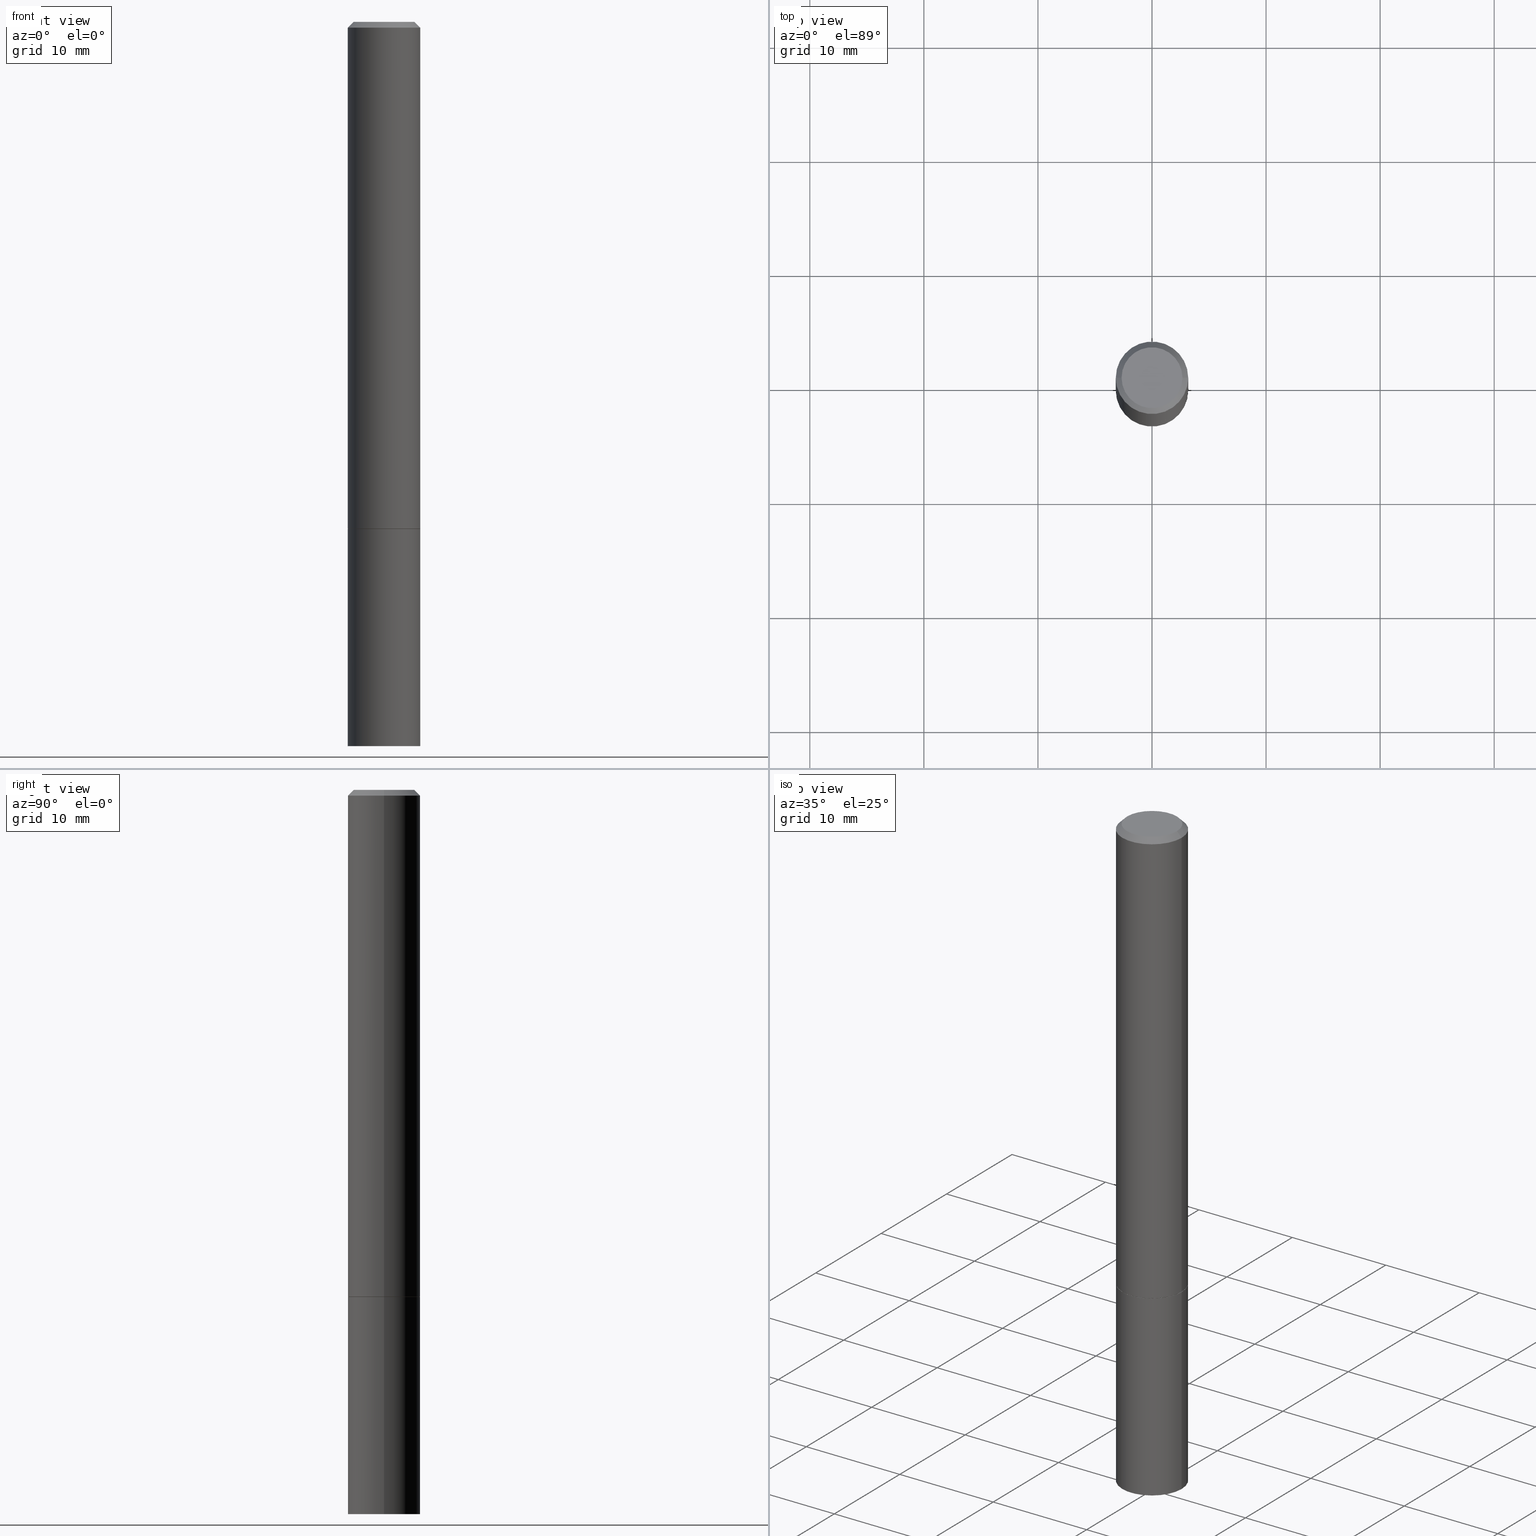
[diagram: canonical four-view strip — front | top / right | iso, engineering-drawing reading convention]
A machine part, canonical four-view strip (front | top / right | iso — engineering-drawing reading convention). The complete STEP part file that produces these views, byte-faithful:
ISO-10303-21;
HEADER;
FILE_DESCRIPTION (( 'STEP AP203' ),
    '1' );
FILE_NAME ('37424.STEP',
    '2024-02-27T21:38:22',
    ( '' ),
    ( '' ),
    'SwSTEP 2.0',
    'SolidWorks 2023',
    '' );
FILE_SCHEMA (( 'CONFIG_CONTROL_DESIGN' ));
ENDSEC;

DATA;
#1 = AXIS2_PLACEMENT_3D ( 'NONE', #358, #110, #298 ) ;
#2 = EDGE_CURVE ( 'NONE', #80, #205, #357, .T. ) ;
#3 = APPLICATION_CONTEXT ( 'configuration controlled 3d designs of mechanical parts and assemblies' ) ;
#4 = CC_DESIGN_PERSON_AND_ORGANIZATION_ASSIGNMENT ( #40, #94, ( #271 ) ) ;
#5 = CYLINDRICAL_SURFACE ( 'NONE', #26, 0.1249999999999999029 ) ;
#6 = LOCAL_TIME ( 16, 38, 22.00000000000000000, #243 ) ;
#7 = AXIS2_PLACEMENT_3D ( 'NONE', #156, #119, #241 ) ;
#8 = CC_DESIGN_APPROVAL ( #162, ( #271 ) ) ;
#9 = DIRECTION ( 'NONE',  ( -1.000000000000000000, 6.982962677686266711E-15, 0.000000000000000000 ) ) ;
#10 = EDGE_LOOP ( 'NONE', ( #112, #27, #103, #168 ) ) ;
#11 = CARTESIAN_POINT ( 'NONE',  ( 0.000000000000000000, 0.000000000000000000, 0.000000000000000000 ) ) ;
#12 = EDGE_CURVE ( 'NONE', #80, #178, #280, .T. ) ;
#13 = CARTESIAN_POINT ( 'NONE',  ( 4.279570410823988484E-29, -6.110092342975504671E-15, -1.750000000000000000 ) ) ;
#14 = FACE_OUTER_BOUND ( 'NONE', #113, .T. ) ;
#15 = ORIENTED_EDGE ( 'NONE', *, *, #143, .T. ) ;
#16 = CC_DESIGN_PERSON_AND_ORGANIZATION_ASSIGNMENT ( #45, #135, ( #223 ) ) ;
#17 = CARTESIAN_POINT ( 'NONE',  ( 0.000000000000000000, 0.000000000000000000, 0.000000000000000000 ) ) ;
#18 = PERSON_AND_ORGANIZATION ( #284, #257 ) ;
#19 = DIRECTION ( 'NONE',  ( -2.445468806185136597E-29, 3.491481338843145583E-15, 1.000000000000000000 ) ) ;
#20 = APPROVAL_PERSON_ORGANIZATION ( #210, #74, #124 ) ;
#21 = PLANE ( 'NONE',  #33 ) ;
#22 = VERTEX_POINT ( 'NONE', #117 ) ;
#23 = DIRECTION ( 'NONE',  ( 0.7071067811866199593, -2.468850131083015945E-15, 0.7071067811864750752 ) ) ;
#24 = ADVANCED_BREP_SHAPE_REPRESENTATION ( '37424', ( #128, #263, #276 ), #35 ) ;
#25 = ORIENTED_EDGE ( 'NONE', *, *, #2, .F. ) ;
#26 = AXIS2_PLACEMENT_3D ( 'NONE', #192, #254, #126 ) ;
#27 = ORIENTED_EDGE ( 'NONE', *, *, #318, .T. ) ;
#28 = EDGE_CURVE ( 'NONE', #131, #22, #92, .T. ) ;
#29 = CIRCLE ( 'NONE', #100, 0.1239999999999999991 ) ;
#30 = EDGE_CURVE ( 'NONE', #213, #282, #301, .T. ) ;
#31 = COORDINATED_UNIVERSAL_TIME_OFFSET ( 5, 0, .BEHIND. ) ;
#32 = ADVANCED_FACE ( 'NONE', ( #97 ), #325, .T. ) ;
#33 = AXIS2_PLACEMENT_3D ( 'NONE', #310, #334, #115 ) ;
#34 = DIRECTION ( 'NONE',  ( -2.445468806185136597E-29, 3.491481338843145583E-15, 1.000000000000000000 ) ) ;
#35 =( GEOMETRIC_REPRESENTATION_CONTEXT ( 3 ) GLOBAL_UNCERTAINTY_ASSIGNED_CONTEXT ( ( #242 ) ) GLOBAL_UNIT_ASSIGNED_CONTEXT ( ( #49, #269, #296 ) ) REPRESENTATION_CONTEXT ( 'NONE', 'WORKASPACE' ) );
#36 = ORIENTED_EDGE ( 'NONE', *, *, #330, .F. ) ;
#37 = LINE ( 'NONE', #226, #78 ) ;
#38 = DIMENSIONAL_EXPONENTS ( 1.000000000000000000, 0.000000000000000000, 0.000000000000000000, 0.000000000000000000, 0.000000000000000000, 0.000000000000000000, 0.000000000000000000 ) ;
#39 = FACE_OUTER_BOUND ( 'NONE', #231, .T. ) ;
#40 = PERSON_AND_ORGANIZATION ( #284, #257 ) ;
#41 = EDGE_LOOP ( 'NONE', ( #62, #15, #246, #354 ) ) ;
#42 = VERTEX_POINT ( 'NONE', #279 ) ;
#43 = AXIS2_PLACEMENT_3D ( 'NONE', #86, #275, #9 ) ;
#44 = AXIS2_PLACEMENT_3D ( 'NONE', #132, #195, #234 ) ;
#45 = PERSON_AND_ORGANIZATION ( #284, #257 ) ;
#46 = CARTESIAN_POINT ( 'NONE',  ( -0.1249999999999997918, 8.030407079339188573E-16, -0.02000000000000003511 ) ) ;
#47 = CARTESIAN_POINT ( 'NONE',  ( 4.279570410823989044E-29, -6.110092342975505460E-15, -1.750000000000000222 ) ) ;
#48 = EDGE_LOOP ( 'NONE', ( #350, #300 ) ) ;
#49 =( CONVERSION_BASED_UNIT ( 'INCH', #311 ) LENGTH_UNIT ( ) NAMED_UNIT ( #38 ) );
#50 = FACE_OUTER_BOUND ( 'NONE', #48, .T. ) ;
#51 = DIRECTION ( 'NONE',  ( -2.445468806185136597E-29, 3.491481338843145583E-15, 1.000000000000000000 ) ) ;
#52 = COORDINATED_UNIVERSAL_TIME_OFFSET ( 5, 0, .BEHIND. ) ;
#53 = PERSON_AND_ORGANIZATION_ROLE ( 'design_owner' ) ;
#54 = DIRECTION ( 'NONE',  ( 1.000000000000000000, -6.982962677686262766E-15, 0.000000000000000000 ) ) ;
#55 = AXIS2_PLACEMENT_3D ( 'NONE', #67, #170, #344 ) ;
#56 = EDGE_LOOP ( 'NONE', ( #278, #148, #181, #36 ) ) ;
#57 = DIRECTION ( 'NONE',  ( 1.000000000000000000, -6.982962677686262766E-15, 0.000000000000000000 ) ) ;
#58 = FACE_OUTER_BOUND ( 'NONE', #41, .T. ) ;
#59 = ADVANCED_FACE ( 'NONE', ( #91 ), #5, .T. ) ;
#60 = ORIENTED_EDGE ( 'NONE', *, *, #261, .F. ) ;
#61 = ORIENTED_EDGE ( 'NONE', *, *, #151, .F. ) ;
#62 = ORIENTED_EDGE ( 'NONE', *, *, #327, .T. ) ;
#63 = COORDINATED_UNIVERSAL_TIME_OFFSET ( 5, 0, .BEHIND. ) ;
#64 = SECURITY_CLASSIFICATION_LEVEL ( 'unclassified' ) ;
#65 = EDGE_CURVE ( 'NONE', #22, #131, #348, .T. ) ;
#66 = CIRCLE ( 'NONE', #161, 0.1250000000000000000 ) ;
#67 = CARTESIAN_POINT ( 'NONE',  ( 4.890937612370281041E-31, -6.982962677686302702E-17, -0.02000000000000003511 ) ) ;
#68 = PERSON_AND_ORGANIZATION_ROLE ( 'creator' ) ;
#69 = ORIENTED_EDGE ( 'NONE', *, *, #173, .T. ) ;
#70 = LOCAL_TIME ( 16, 38, 22.00000000000000000, #52 ) ;
#71 = AXIS2_PLACEMENT_3D ( 'NONE', #141, #337, #211 ) ;
#72 = ADVANCED_FACE ( 'NONE', ( #39 ), #324, .F. ) ;
#73 = DIRECTION ( 'NONE',  ( 1.000000000000000000, -6.982962677686266711E-15, 4.876176775795935793E-29 ) ) ;
#74 = APPROVAL ( #87, 'UNSPECIFIED' ) ;
#75 = FACE_OUTER_BOUND ( 'NONE', #274, .T. ) ;
#76 = CYLINDRICAL_SURFACE ( 'NONE', #187, 0.1249999999999999029 ) ;
#77 = CARTESIAN_POINT ( 'NONE',  ( 4.279570410823988484E-29, -6.110092342975504671E-15, -1.750000000000000000 ) ) ;
#78 = VECTOR ( 'NONE', #188, 39.37007874015748143 ) ;
#79 = CARTESIAN_POINT ( 'NONE',  ( -0.1239999999999999991, -5.229019350632980447E-15, -1.750000000000000000 ) ) ;
#80 = VERTEX_POINT ( 'NONE', #342 ) ;
#81 = DIRECTION ( 'NONE',  ( 2.445468806185136597E-29, -3.491481338843145583E-15, -1.000000000000000000 ) ) ;
#82 = LINE ( 'NONE', #286, #136 ) ;
#83 = PRODUCT ( '37424', '37424', '', ( #341 ) ) ;
#84 = AXIS2_PLACEMENT_3D ( 'NONE', #17, #179, #118 ) ;
#85 = ADVANCED_FACE ( 'NONE', ( #320 ), #127, .T. ) ;
#86 = CARTESIAN_POINT ( 'NONE',  ( 4.890937612370281041E-31, -6.982962677686302702E-17, -0.02000000000000003511 ) ) ;
#87 = APPROVAL_STATUS ( 'not_yet_approved' ) ;
#88 = ORIENTED_EDGE ( 'NONE', *, *, #152, .F. ) ;
#89 = PERSON_AND_ORGANIZATION ( #284, #257 ) ;
#90 = ORIENTED_EDGE ( 'NONE', *, *, #261, .T. ) ;
#91 = FACE_OUTER_BOUND ( 'NONE', #313, .T. ) ;
#92 = CIRCLE ( 'NONE', #270, 0.1049999999999998018 ) ;
#93 = CC_DESIGN_APPROVAL ( #74, ( #237 ) ) ;
#94 = PERSON_AND_ORGANIZATION_ROLE ( 'classification_officer' ) ;
#95 = CALENDAR_DATE ( 2024, 27, 2 ) ;
#96 = DIRECTION ( 'NONE',  ( 1.000000000000000000, -6.982962677686266711E-15, 0.000000000000000000 ) ) ;
#97 = FACE_OUTER_BOUND ( 'NONE', #56, .T. ) ;
#98 = EDGE_CURVE ( 'NONE', #22, #282, #37, .T. ) ;
#99 = ORIENTED_EDGE ( 'NONE', *, *, #288, .T. ) ;
#100 = AXIS2_PLACEMENT_3D ( 'NONE', #333, #51, #57 ) ;
#101 = DATE_AND_TIME ( #186, #233 ) ;
#102 = CARTESIAN_POINT ( 'NONE',  ( 0.1250000000000000000, -6.979471196347445792E-15, -1.749000000000000110 ) ) ;
#103 = ORIENTED_EDGE ( 'NONE', *, *, #2, .T. ) ;
#104 = VERTEX_POINT ( 'NONE', #201 ) ;
#105 = APPROVAL_DATE_TIME ( #283, #74 ) ;
#106 = ORIENTED_EDGE ( 'NONE', *, *, #327, .F. ) ;
#107 = CC_DESIGN_APPROVAL ( #206, ( #223 ) ) ;
#108 = CC_DESIGN_PERSON_AND_ORGANIZATION_ASSIGNMENT ( #209, #53, ( #83 ) ) ;
#109 = VECTOR ( 'NONE', #23, 39.37007874015748143 ) ;
#110 = DIRECTION ( 'NONE',  ( -2.445468806185136597E-29, 3.491481338843145583E-15, 1.000000000000000000 ) ) ;
#111 = PERSON_AND_ORGANIZATION_ROLE ( 'design_supplier' ) ;
#112 = ORIENTED_EDGE ( 'NONE', *, *, #219, .F. ) ;
#113 = EDGE_LOOP ( 'NONE', ( #165, #235, #99, #61 ) ) ;
#114 = CARTESIAN_POINT ( 'NONE',  ( 0.1250000000000000000, -9.601573681818648281E-15, -2.500000000000000000 ) ) ;
#115 = DIRECTION ( 'NONE',  ( -1.000000000000000000, 6.982962677686265922E-15, -4.876176775795935793E-29 ) ) ;
#116 = CLOSED_SHELL ( 'NONE', ( #319, #304, #364, #85, #59, #185, #72, #335 ) ) ;
#117 = CARTESIAN_POINT ( 'NONE',  ( 0.1049999999999998018, -8.238720831321562839E-16, 5.444276250344140956E-30 ) ) ;
#118 = DIRECTION ( 'NONE',  ( 1.000000000000000000, -6.982962677686266711E-15, 4.876176775795935793E-29 ) ) ;
#119 = DIRECTION ( 'NONE',  ( -2.438088387897960049E-29, 3.491481338843145188E-15, 1.000000000000000000 ) ) ;
#120 = CARTESIAN_POINT ( 'NONE',  ( 4.277124942017804562E-29, -6.106600861636661664E-15, -1.749000000000000110 ) ) ;
#121 = APPLICATION_PROTOCOL_DEFINITION ( 'international standard', 'config_control_design', 1994, #3 ) ;
#122 = CALENDAR_DATE ( 2024, 27, 2 ) ;
#123 = AXIS2_PLACEMENT_3D ( 'NONE', #355, #287, #290 ) ;
#124 = APPROVAL_ROLE ( '' ) ;
#125 = EDGE_CURVE ( 'NONE', #303, #205, #331, .T. ) ;
#126 = DIRECTION ( 'NONE',  ( 1.000000000000000000, -6.982962677686266711E-15, 4.876176775795935793E-29 ) ) ;
#127 = CONICAL_SURFACE ( 'NONE', #43, 0.1249999999999997918, 0.7853981633974472798 ) ;
#128 = MANIFOLD_SOLID_BREP ( 'Body-Move/Copy2[1]', #309 ) ;
#129 = DIRECTION ( 'NONE',  ( -2.445468806185136597E-29, 3.491481338843145583E-15, 1.000000000000000000 ) ) ;
#130 = ORIENTED_EDGE ( 'NONE', *, *, #173, .F. ) ;
#131 = VERTEX_POINT ( 'NONE', #267 ) ;
#132 = CARTESIAN_POINT ( 'NONE',  ( 6.113672015462842613E-29, -8.728703347107864943E-15, -2.500000000000000000 ) ) ;
#133 = PLANE ( 'NONE',  #361 ) ;
#134 = CARTESIAN_POINT ( 'NONE',  ( -0.1249999999999999029, 8.881784197001245421E-16, -6.148668862818627323E-30 ) ) ;
#135 = PERSON_AND_ORGANIZATION_ROLE ( 'creator' ) ;
#136 = VECTOR ( 'NONE', #144, 39.37007874015748143 ) ;
#137 = DIRECTION ( 'NONE',  ( 1.000000000000000000, -6.982962677686262766E-15, 0.000000000000000000 ) ) ;
#138 = EDGE_LOOP ( 'NONE', ( #299, #157 ) ) ;
#139 = DIRECTION ( 'NONE',  ( 1.000000000000000000, -6.982962677686262766E-15, 0.000000000000000000 ) ) ;
#140 = FACE_OUTER_BOUND ( 'NONE', #224, .T. ) ;
#141 = CARTESIAN_POINT ( 'NONE',  ( 4.279570410823988484E-29, -6.110092342975504671E-15, -1.750000000000000000 ) ) ;
#142 = CARTESIAN_POINT ( 'NONE',  ( 4.279570410823989044E-29, -6.110092342975505460E-15, -1.750000000000000222 ) ) ;
#143 = EDGE_CURVE ( 'NONE', #42, #363, #214, .T. ) ;
#144 = DIRECTION ( 'NONE',  ( -2.445468806185136877E-29, 3.491481338843145188E-15, 1.000000000000000000 ) ) ;
#145 = DIRECTION ( 'NONE',  ( -2.445468806185136597E-29, 3.491481338843145583E-15, 1.000000000000000000 ) ) ;
#146 = AXIS2_PLACEMENT_3D ( 'NONE', #253, #34, #96 ) ;
#147 = APPROVAL_STATUS ( 'not_yet_approved' ) ;
#148 = ORIENTED_EDGE ( 'NONE', *, *, #183, .T. ) ;
#149 = CONICAL_SURFACE ( 'NONE', #352, 0.1239999999999999991, 0.7853981633975507526 ) ;
#150 = CARTESIAN_POINT ( 'NONE',  ( 0.000000000000000000, 0.000000000000000000, 0.000000000000000000 ) ) ;
#151 = EDGE_CURVE ( 'NONE', #131, #213, #166, .T. ) ;
#152 = EDGE_CURVE ( 'NONE', #205, #282, #82, .T. ) ;
#153 = AXIS2_PLACEMENT_3D ( 'NONE', #289, #81, #196 ) ;
#154 = VECTOR ( 'NONE', #285, 39.37007874015748143 ) ;
#155 = APPROVAL_DATE_TIME ( #281, #206 ) ;
#156 = CARTESIAN_POINT ( 'NONE',  ( 4.279570410823989044E-29, -6.110092342975505460E-15, -1.750000000000000222 ) ) ;
#157 = ORIENTED_EDGE ( 'NONE', *, *, #65, .T. ) ;
#158 = ADVANCED_FACE ( 'NONE', ( #58 ), #362, .T. ) ;
#159 = ORIENTED_EDGE ( 'NONE', *, *, #12, .F. ) ;
#160 = ORIENTED_EDGE ( 'NONE', *, *, #318, .F. ) ;
#161 = AXIS2_PLACEMENT_3D ( 'NONE', #142, #172, #212 ) ;
#162 = APPROVAL ( #273, 'UNSPECIFIED' ) ;
#163 = PLANE ( 'NONE',  #123 ) ;
#164 = CARTESIAN_POINT ( 'NONE',  ( -0.1250000000000000000, -6.531219425341559180E-15, -1.750000000000000222 ) ) ;
#165 = ORIENTED_EDGE ( 'NONE', *, *, #65, .F. ) ;
#166 = LINE ( 'NONE', #46, #217 ) ;
#167 = CARTESIAN_POINT ( 'NONE',  ( 0.000000000000000000, 0.000000000000000000, 0.000000000000000000 ) ) ;
#168 = ORIENTED_EDGE ( 'NONE', *, *, #125, .F. ) ;
#169 = DIRECTION ( 'NONE',  ( -1.000000000000000000, 6.982962677686265922E-15, -4.876176775795935793E-29 ) ) ;
#170 = DIRECTION ( 'NONE',  ( -2.445468806185136597E-29, 3.491481338843145583E-15, 1.000000000000000000 ) ) ;
#171 = APPLICATION_PROTOCOL_DEFINITION ( 'international standard', 'config_control_design', 1994, #193 ) ;
#172 = DIRECTION ( 'NONE',  ( -2.445468806185136597E-29, 3.491481338843145583E-15, 1.000000000000000000 ) ) ;
#173 = EDGE_CURVE ( 'NONE', #303, #213, #239, .T. ) ;
#174 = LOCAL_TIME ( 16, 38, 22.00000000000000000, #31 ) ;
#175 = CALENDAR_DATE ( 2024, 27, 2 ) ;
#176 = AXIS2_PLACEMENT_3D ( 'NONE', #47, #256, #137 ) ;
#177 = DIRECTION ( 'NONE',  ( -2.445468806185136597E-29, 3.491481338843145583E-15, 1.000000000000000000 ) ) ;
#178 = VERTEX_POINT ( 'NONE', #312 ) ;
#179 = DIRECTION ( 'NONE',  ( -2.445468806185136597E-29, 3.491481338843145583E-15, 1.000000000000000000 ) ) ;
#180 = EDGE_CURVE ( 'NONE', #339, #104, #228, .T. ) ;
#181 = ORIENTED_EDGE ( 'NONE', *, *, #180, .T. ) ;
#182 = CARTESIAN_POINT ( 'NONE',  ( 0.1249999999999997918, -9.273918764983031658E-16, -0.02000000000000003511 ) ) ;
#183 = EDGE_CURVE ( 'NONE', #42, #339, #321, .T. ) ;
#184 = AXIS2_PLACEMENT_3D ( 'NONE', #120, #129, #222 ) ;
#185 = ADVANCED_FACE ( 'NONE', ( #314 ), #346, .T. ) ;
#186 = CALENDAR_DATE ( 2024, 27, 2 ) ;
#187 = AXIS2_PLACEMENT_3D ( 'NONE', #11, #259, #329 ) ;
#188 = DIRECTION ( 'NONE',  ( 0.7071067811865467956, -7.319954787623254468E-15, -0.7071067811865482389 ) ) ;
#189 = DIRECTION ( 'NONE',  ( 1.000000000000000000, -6.982962677686265922E-15, 4.876176775795935793E-29 ) ) ;
#190 = APPROVAL_PERSON_ORGANIZATION ( #89, #162, #215 ) ;
#191 = CIRCLE ( 'NONE', #176, 0.1250000000000000000 ) ;
#192 = CARTESIAN_POINT ( 'NONE',  ( 0.000000000000000000, 0.000000000000000000, 0.000000000000000000 ) ) ;
#193 = APPLICATION_CONTEXT ( 'configuration controlled 3d designs of mechanical parts and assemblies' ) ;
#194 = DIRECTION ( 'NONE',  ( -2.445468806185136877E-29, 3.491481338843145188E-15, 1.000000000000000000 ) ) ;
#195 = DIRECTION ( 'NONE',  ( -2.445468806185136597E-29, 3.491481338843145583E-15, 1.000000000000000000 ) ) ;
#196 = DIRECTION ( 'NONE',  ( -1.000000000000000000, 6.982962677686266711E-15, 0.000000000000000000 ) ) ;
#197 = DIRECTION ( 'NONE',  ( 2.438088387897960049E-29, -3.491481338843145188E-15, -1.000000000000000000 ) ) ;
#198 = DIRECTION ( 'NONE',  ( -2.445468806185136877E-29, 3.491481338843145188E-15, 1.000000000000000000 ) ) ;
#199 = ORIENTED_EDGE ( 'NONE', *, *, #12, .T. ) ;
#201 = CARTESIAN_POINT ( 'NONE',  ( 0.1250000000000000000, -6.982962677686288010E-15, -1.750000000000000222 ) ) ;
#200 = FACE_OUTER_BOUND ( 'NONE', #244, .T. ) ;
#202 = DATE_AND_TIME ( #323, #174 ) ;
#203 = APPROVAL_ROLE ( '' ) ;
#204 = CARTESIAN_POINT ( 'NONE',  ( 0.1250000000000000000, -8.728703347107833388E-16, 6.095220969744919741E-30 ) ) ;
#205 = VERTEX_POINT ( 'NONE', #102 ) ;
#206 = APPROVAL ( #147, 'UNSPECIFIED' ) ;
#207 = DIRECTION ( 'NONE',  ( -0.7071067811865467956, 2.468850131082249172E-15, -0.7071067811865482389 ) ) ;
#208 = ORIENTED_EDGE ( 'NONE', *, *, #30, .T. ) ;
#209 = PERSON_AND_ORGANIZATION ( #284, #257 ) ;
#210 = PERSON_AND_ORGANIZATION ( #284, #257 ) ;
#211 = DIRECTION ( 'NONE',  ( 1.000000000000000000, -6.982962677686262766E-15, 0.000000000000000000 ) ) ;
#212 = DIRECTION ( 'NONE',  ( 1.000000000000000000, -6.982962677686262766E-15, 0.000000000000000000 ) ) ;
#213 = VERTEX_POINT ( 'NONE', #230 ) ;
#214 = LINE ( 'NONE', #218, #255 ) ;
#215 = APPROVAL_ROLE ( '' ) ;
#216 = APPROVAL_PERSON_ORGANIZATION ( #265, #206, #203 ) ;
#217 = VECTOR ( 'NONE', #207, 39.37007874015748143 ) ;
#218 = CARTESIAN_POINT ( 'NONE',  ( -0.1250000000000000000, 8.881784197001252323E-16, -6.148668862818632227E-30 ) ) ;
#219 = EDGE_CURVE ( 'NONE', #178, #303, #293, .T. ) ;
#220 = CARTESIAN_POINT ( 'NONE',  ( 0.000000000000000000, 0.000000000000000000, 0.000000000000000000 ) ) ;
#221 = CC_DESIGN_DATE_AND_TIME_ASSIGNMENT ( #347, #247, ( #271 ) ) ;
#222 = DIRECTION ( 'NONE',  ( 1.000000000000000000, -6.982962677686270655E-15, 0.000000000000000000 ) ) ;
#223 = PRODUCT_DEFINITION_FORMATION_WITH_SPECIFIED_SOURCE ( 'ANY', '', #83, .NOT_KNOWN. ) ;
#224 = EDGE_LOOP ( 'NONE', ( #106, #297 ) ) ;
#225 = CIRCLE ( 'NONE', #55, 0.1249999999999997918 ) ;
#226 = CARTESIAN_POINT ( 'NONE',  ( 0.1249999999999997918, -9.273918764983031658E-16, -0.02000000000000003511 ) ) ;
#227 = ORIENTED_EDGE ( 'NONE', *, *, #151, .T. ) ;
#228 = LINE ( 'NONE', #204, #326 ) ;
#229 = SHAPE_DEFINITION_REPRESENTATION ( #353, #24 ) ;
#230 = CARTESIAN_POINT ( 'NONE',  ( -0.1249999999999997918, 8.030407079339188573E-16, -0.02000000000000003511 ) ) ;
#231 = EDGE_LOOP ( 'NONE', ( #159, #160 ) ) ;
#232 = ORIENTED_EDGE ( 'NONE', *, *, #30, .F. ) ;
#233 = LOCAL_TIME ( 16, 38, 22.00000000000000000, #63 ) ;
#234 = DIRECTION ( 'NONE',  ( 1.000000000000000000, -6.982962677686270655E-15, 0.000000000000000000 ) ) ;
#235 = ORIENTED_EDGE ( 'NONE', *, *, #98, .T. ) ;
#236 = AXIS2_PLACEMENT_3D ( 'NONE', #317, #332, #266 ) ;
#237 = PRODUCT_DEFINITION ( 'UNKNOWN', '', #223, #250 ) ;
#238 = DATE_TIME_ROLE ( 'creation_date' ) ;
#239 = LINE ( 'NONE', #134, #277 ) ;
#241 = DIRECTION ( 'NONE',  ( 1.000000000000000000, -6.982962677686265922E-15, 4.876176775795935793E-29 ) ) ;
#240 = DIRECTION ( 'NONE',  ( 1.000000000000000000, 0.000000000000000000, 0.000000000000000000 ) ) ;
#242 = UNCERTAINTY_MEASURE_WITH_UNIT (LENGTH_MEASURE( 1.000000000000000082E-05 ), #49, 'distance_accuracy_value', 'NONE');
#243 = COORDINATED_UNIVERSAL_TIME_OFFSET ( 5, 0, .BEHIND. ) ;
#244 = EDGE_LOOP ( 'NONE', ( #199, #262, #60, #25 ) ) ;
#245 = ADVANCED_FACE ( 'NONE', ( #50 ), #163, .F. ) ;
#246 = ORIENTED_EDGE ( 'NONE', *, *, #252, .F. ) ;
#247 = DATE_TIME_ROLE ( 'classification_date' ) ;
#248 = PRODUCT_RELATED_PRODUCT_CATEGORY ( 'detail', '', ( #83 ) ) ;
#249 = ADVANCED_FACE ( 'NONE', ( #140 ), #21, .T. ) ;
#250 = DESIGN_CONTEXT ( 'detailed design', #193, 'design' ) ;
#251 = AXIS2_PLACEMENT_3D ( 'NONE', #305, #351, #189 ) ;
#252 = EDGE_CURVE ( 'NONE', #104, #363, #191, .T. ) ;
#253 = CARTESIAN_POINT ( 'NONE',  ( 4.890937612370281041E-31, -6.982962677686302702E-17, -0.02000000000000003511 ) ) ;
#254 = DIRECTION ( 'NONE',  ( -2.445468806185136597E-29, 3.491481338843145583E-15, 1.000000000000000000 ) ) ;
#255 = VECTOR ( 'NONE', #194, 39.37007874015748143 ) ;
#256 = DIRECTION ( 'NONE',  ( -2.445468806185136597E-29, 3.491481338843145583E-15, 1.000000000000000000 ) ) ;
#257 = ORGANIZATION ( 'UNSPECIFIED', 'UNSPECIFIED', '' ) ;
#258 = PERSON_AND_ORGANIZATION ( #284, #257 ) ;
#259 = DIRECTION ( 'NONE',  ( -2.445468806185136597E-29, 3.491481338843145583E-15, 1.000000000000000000 ) ) ;
#260 = LOCAL_TIME ( 16, 38, 22.00000000000000000, #308 ) ;
#261 = EDGE_CURVE ( 'NONE', #205, #303, #338, .T. ) ;
#262 = ORIENTED_EDGE ( 'NONE', *, *, #219, .T. ) ;
#263 = MANIFOLD_SOLID_BREP ( 'Body-Move/Copy2[2]', #116 ) ;
#264 = FACE_OUTER_BOUND ( 'NONE', #138, .T. ) ;
#265 = PERSON_AND_ORGANIZATION ( #284, #257 ) ;
#266 = DIRECTION ( 'NONE',  ( 1.000000000000000000, -6.982962677686270655E-15, 0.000000000000000000 ) ) ;
#267 = CARTESIAN_POINT ( 'NONE',  ( -0.1049999999999998018, 7.681258945454876027E-16, -5.249639473182157468E-30 ) ) ;
#268 = ORIENTED_EDGE ( 'NONE', *, *, #152, .T. ) ;
#269 =( NAMED_UNIT ( * ) PLANE_ANGLE_UNIT ( ) SI_UNIT ( $, .RADIAN. ) );
#270 = AXIS2_PLACEMENT_3D ( 'NONE', #167, #145, #272 ) ;
#271 = SECURITY_CLASSIFICATION ( '', '', #64 ) ;
#272 = DIRECTION ( 'NONE',  ( 1.000000000000000000, -6.982962677686265922E-15, 4.876176775795935793E-29 ) ) ;
#273 = APPROVAL_STATUS ( 'not_yet_approved' ) ;
#274 = EDGE_LOOP ( 'NONE', ( #90, #69, #360, #88 ) ) ;
#275 = DIRECTION ( 'NONE',  ( 2.445468806185136597E-29, -3.491481338843145583E-15, -1.000000000000000000 ) ) ;
#276 = AXIS2_PLACEMENT_3D ( 'NONE', #150, #366, #240 ) ;
#277 = VECTOR ( 'NONE', #198, 39.37007874015748143 ) ;
#278 = ORIENTED_EDGE ( 'NONE', *, *, #143, .F. ) ;
#279 = CARTESIAN_POINT ( 'NONE',  ( -0.1250000000000000000, -6.531219425341559180E-15, -2.500000000000000000 ) ) ;
#280 = CIRCLE ( 'NONE', #71, 0.1239999999999999991 ) ;
#281 = DATE_AND_TIME ( #175, #70 ) ;
#282 = VERTEX_POINT ( 'NONE', #182 ) ;
#283 = DATE_AND_TIME ( #95, #260 ) ;
#284 = PERSON ( 'UNSPECIFIED', 'UNSPECIFIED', 'UNSPECIFIED', ('UNSPECIFIED'), ('UNSPECIFIED'), ('UNSPECIFIED') ) ;
#285 = DIRECTION ( 'NONE',  ( -0.7071067811866199593, 7.493145998870616062E-15, 0.7071067811864750752 ) ) ;
#286 = CARTESIAN_POINT ( 'NONE',  ( 0.1249999999999999029, -8.728703347107826486E-16, 6.095220969744914837E-30 ) ) ;
#287 = DIRECTION ( 'NONE',  ( 2.438088387897960049E-29, -3.491481338843145188E-15, -1.000000000000000000 ) ) ;
#288 = EDGE_CURVE ( 'NONE', #282, #213, #225, .T. ) ;
#289 = CARTESIAN_POINT ( 'NONE',  ( 4.890937612370281041E-31, -6.982962677686302702E-17, -0.02000000000000003511 ) ) ;
#290 = DIRECTION ( 'NONE',  ( -1.000000000000000000, 6.982962677686265922E-15, -4.876176775795935793E-29 ) ) ;
#291 = AXIS2_PLACEMENT_3D ( 'NONE', #13, #177, #54 ) ;
#292 = CARTESIAN_POINT ( 'NONE',  ( 7.332110811570565452E-16, 0.1049999999999998018, -3.666055405785296038E-16 ) ) ;
#293 = LINE ( 'NONE', #79, #154 ) ;
#294 = CARTESIAN_POINT ( 'NONE',  ( 0.1239999999999999991, -6.975979715008601207E-15, -1.750000000000000000 ) ) ;
#295 = CONICAL_SURFACE ( 'NONE', #153, 0.1249999999999997918, 0.7853981633974472798 ) ;
#296 =( NAMED_UNIT ( * ) SI_UNIT ( $, .STERADIAN. ) SOLID_ANGLE_UNIT ( ) );
#297 = ORIENTED_EDGE ( 'NONE', *, *, #183, .F. ) ;
#298 = DIRECTION ( 'NONE',  ( 1.000000000000000000, -6.982962677686270655E-15, 0.000000000000000000 ) ) ;
#299 = ORIENTED_EDGE ( 'NONE', *, *, #28, .T. ) ;
#300 = ORIENTED_EDGE ( 'NONE', *, *, #330, .T. ) ;
#301 = CIRCLE ( 'NONE', #146, 0.1249999999999997918 ) ;
#302 = CC_DESIGN_DATE_AND_TIME_ASSIGNMENT ( #202, #238, ( #237 ) ) ;
#303 = VERTEX_POINT ( 'NONE', #322 ) ;
#304 = ADVANCED_FACE ( 'NONE', ( #75 ), #76, .T. ) ;
#305 = CARTESIAN_POINT ( 'NONE',  ( 0.000000000000000000, 0.000000000000000000, 0.000000000000000000 ) ) ;
#306 = EDGE_LOOP ( 'NONE', ( #343, #365, #227, #208 ) ) ;
#307 = CC_DESIGN_PERSON_AND_ORGANIZATION_ASSIGNMENT ( #258, #111, ( #223 ) ) ;
#308 = COORDINATED_UNIVERSAL_TIME_OFFSET ( 5, 0, .BEHIND. ) ;
#309 = CLOSED_SHELL ( 'NONE', ( #158, #249, #245, #32 ) ) ;
#310 = CARTESIAN_POINT ( 'NONE',  ( 8.728703347108443769E-16, 0.1249999999999912709, -2.500000000000000444 ) ) ;
#311 = LENGTH_MEASURE_WITH_UNIT ( LENGTH_MEASURE( 0.02539999999999999897 ), #336 );
#312 = CARTESIAN_POINT ( 'NONE',  ( -0.1239999999999999991, -5.223720896284758045E-15, -1.750000000000000000 ) ) ;
#313 = EDGE_LOOP ( 'NONE', ( #130, #340, #268, #232 ) ) ;
#314 = FACE_OUTER_BOUND ( 'NONE', #10, .T. ) ;
#315 = DIRECTION ( 'NONE',  ( -2.445468806185136877E-29, 3.491481338843145188E-15, 1.000000000000000000 ) ) ;
#316 = CIRCLE ( 'NONE', #236, 0.1250000000000000000 ) ;
#317 = CARTESIAN_POINT ( 'NONE',  ( 6.113672015462842613E-29, -8.728703347107864943E-15, -2.500000000000000000 ) ) ;
#318 = EDGE_CURVE ( 'NONE', #178, #80, #29, .T. ) ;
#319 = ADVANCED_FACE ( 'NONE', ( #200 ), #149, .T. ) ;
#320 = FACE_OUTER_BOUND ( 'NONE', #306, .T. ) ;
#321 = CIRCLE ( 'NONE', #44, 0.1250000000000000000 ) ;
#322 = CARTESIAN_POINT ( 'NONE',  ( -0.1250000000000000278, -2.200036824506634488E-15, -1.749000000000000110 ) ) ;
#323 = CALENDAR_DATE ( 2024, 27, 2 ) ;
#324 = PLANE ( 'NONE',  #7 ) ;
#325 = CYLINDRICAL_SURFACE ( 'NONE', #356, 0.1250000000000000000 ) ;
#326 = VECTOR ( 'NONE', #315, 39.37007874015748143 ) ;
#327 = EDGE_CURVE ( 'NONE', #339, #42, #316, .T. ) ;
#328 = APPROVAL_DATE_TIME ( #101, #162 ) ;
#329 = DIRECTION ( 'NONE',  ( 1.000000000000000000, -6.982962677686266711E-15, 4.876176775795935793E-29 ) ) ;
#330 = EDGE_CURVE ( 'NONE', #363, #104, #66, .T. ) ;
#331 = CIRCLE ( 'NONE', #184, 0.1250000000000000000 ) ;
#332 = DIRECTION ( 'NONE',  ( -2.445468806185136597E-29, 3.491481338843145583E-15, 1.000000000000000000 ) ) ;
#333 = CARTESIAN_POINT ( 'NONE',  ( 4.279570410823988484E-29, -6.110092342975504671E-15, -1.750000000000000000 ) ) ;
#334 = DIRECTION ( 'NONE',  ( 2.438088387897960049E-29, -3.491481338843145188E-15, -1.000000000000000000 ) ) ;
#335 = ADVANCED_FACE ( 'NONE', ( #264 ), #133, .F. ) ;
#336 =( LENGTH_UNIT ( ) NAMED_UNIT ( * ) SI_UNIT ( $, .METRE. ) );
#337 = DIRECTION ( 'NONE',  ( -2.445468806185136597E-29, 3.491481338843145583E-15, 1.000000000000000000 ) ) ;
#338 = CIRCLE ( 'NONE', #1, 0.1250000000000000000 ) ;
#339 = VERTEX_POINT ( 'NONE', #114 ) ;
#340 = ORIENTED_EDGE ( 'NONE', *, *, #125, .T. ) ;
#342 = CARTESIAN_POINT ( 'NONE',  ( 0.1239999999999999991, -6.975979715008601207E-15, -1.750000000000000000 ) ) ;
#341 = MECHANICAL_CONTEXT ( 'NONE', #3, 'mechanical' ) ;
#343 = ORIENTED_EDGE ( 'NONE', *, *, #98, .F. ) ;
#344 = DIRECTION ( 'NONE',  ( 1.000000000000000000, -6.982962677686266711E-15, 0.000000000000000000 ) ) ;
#345 = CC_DESIGN_SECURITY_CLASSIFICATION ( #271, ( #223 ) ) ;
#346 = CONICAL_SURFACE ( 'NONE', #291, 0.1239999999999999991, 0.7853981633975507526 ) ;
#347 = DATE_AND_TIME ( #122, #6 ) ;
#348 = CIRCLE ( 'NONE', #251, 0.1049999999999998018 ) ;
#349 = DIRECTION ( 'NONE',  ( -2.445468806185136597E-29, 3.491481338843145583E-15, 1.000000000000000000 ) ) ;
#350 = ORIENTED_EDGE ( 'NONE', *, *, #252, .T. ) ;
#351 = DIRECTION ( 'NONE',  ( -2.445468806185136597E-29, 3.491481338843145583E-15, 1.000000000000000000 ) ) ;
#352 = AXIS2_PLACEMENT_3D ( 'NONE', #77, #19, #139 ) ;
#353 = PRODUCT_DEFINITION_SHAPE ( 'NONE', 'NONE',  #237 ) ;
#354 = ORIENTED_EDGE ( 'NONE', *, *, #180, .F. ) ;
#355 = CARTESIAN_POINT ( 'NONE',  ( 8.728703347108260359E-16, 0.1249999999999938799, -1.750000000000000666 ) ) ;
#356 = AXIS2_PLACEMENT_3D ( 'NONE', #220, #349, #73 ) ;
#357 = LINE ( 'NONE', #294, #109 ) ;
#358 = CARTESIAN_POINT ( 'NONE',  ( 4.277124942017804562E-29, -6.106600861636661664E-15, -1.749000000000000110 ) ) ;
#359 = CC_DESIGN_PERSON_AND_ORGANIZATION_ASSIGNMENT ( #18, #68, ( #237 ) ) ;
#360 = ORIENTED_EDGE ( 'NONE', *, *, #288, .F. ) ;
#361 = AXIS2_PLACEMENT_3D ( 'NONE', #292, #197, #169 ) ;
#362 = CYLINDRICAL_SURFACE ( 'NONE', #84, 0.1250000000000000000 ) ;
#363 = VERTEX_POINT ( 'NONE', #164 ) ;
#364 = ADVANCED_FACE ( 'NONE', ( #14 ), #295, .T. ) ;
#365 = ORIENTED_EDGE ( 'NONE', *, *, #28, .F. ) ;
#366 = DIRECTION ( 'NONE',  ( 0.000000000000000000, 0.000000000000000000, 1.000000000000000000 ) ) ;
ENDSEC;
END-ISO-10303-21;
